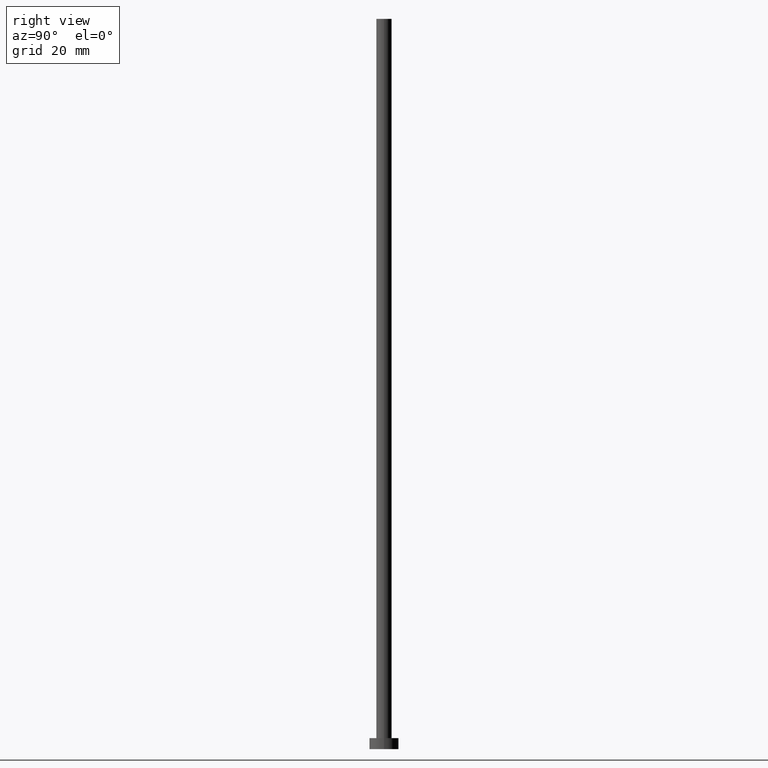
[diagram: clean part render]
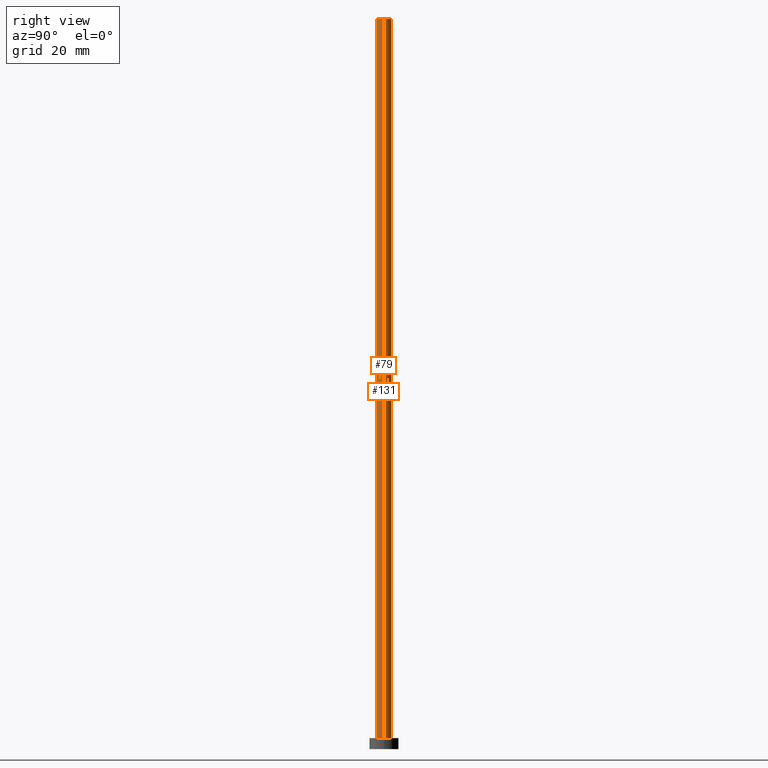
[diagram: same view with one multi-face feature highlighted, each face labeled with its STEP entity id]
A machine part, right view. The highlighted faces form ONE feature: a constant-radius fillet chain: 2 tangent blend faces with common blend radius 2.1 mm. The faces share edges in the B-rep.
Their STEP definitions:
[1] entity #131 (Cylinder):
#9 = ORIENTED_EDGE ( 'NONE', *, *, #123, .T. ) ;
#10 = EDGE_CURVE ( 'NONE', #200, #153, #242, .T. ) ;
#12 = LINE ( 'NONE', #43, #22 ) ;
#16 = VECTOR ( 'NONE', #18, 1000.000000000000000 ) ;
#18 = DIRECTION ( 'NONE',  ( -0.000000000000000000, -0.000000000000000000, -1.000000000000000000 ) ) ;
#22 = VECTOR ( 'NONE', #126, 1000.000000000000000 ) ;
#31 = ORIENTED_EDGE ( 'NONE', *, *, #10, .F. ) ;
#39 = LINE ( 'NONE', #118, #16 ) ;
#43 = CARTESIAN_POINT ( 'NONE',  ( -2.100000000000000089, 0.000000000000000000, 200.0000000000000000 ) ) ;
#46 = DIRECTION ( 'NONE',  ( -1.000000000000000000, 0.000000000000000000, 0.000000000000000000 ) ) ;
#73 = CIRCLE ( 'NONE', #125, 2.100000000000000089 ) ;
#81 = DIRECTION ( 'NONE',  ( 1.000000000000000000, 0.000000000000000000, 0.000000000000000000 ) ) ;
#87 = CARTESIAN_POINT ( 'NONE',  ( 0.000000000000000000, 0.000000000000000000, 200.0000000000000000 ) ) ;
#88 = ORIENTED_EDGE ( 'NONE', *, *, #194, .T. ) ;
#107 = AXIS2_PLACEMENT_3D ( 'NONE', #87, #244, #46 ) ;
#109 = DIRECTION ( 'NONE',  ( 0.000000000000000000, 0.000000000000000000, 1.000000000000000000 ) ) ;
#118 = CARTESIAN_POINT ( 'NONE',  ( 2.100000000000000089, 2.571758278209441957E-16, 200.0000000000000000 ) ) ;
#123 = EDGE_CURVE ( 'NONE', #229, #211, #73, .T. ) ;
#125 = AXIS2_PLACEMENT_3D ( 'NONE', #185, #109, #81 ) ;
#126 = DIRECTION ( 'NONE',  ( -0.000000000000000000, -0.000000000000000000, -1.000000000000000000 ) ) ;
#131 = ADVANCED_FACE ( 'NONE', ( #245 ), #163, .T. ) ;
#132 = CARTESIAN_POINT ( 'NONE',  ( -2.100000000000000089, 0.000000000000000000, 200.0000000000000000 ) ) ;
#135 = CARTESIAN_POINT ( 'NONE',  ( 0.000000000000000000, 0.000000000000000000, 200.0000000000000000 ) ) ;
#136 = CARTESIAN_POINT ( 'NONE',  ( 2.100000000000000089, 2.571758278209441957E-16, 3.000000000000000000 ) ) ;
#141 = EDGE_CURVE ( 'NONE', #153, #211, #12, .T. ) ;
#153 = VERTEX_POINT ( 'NONE', #132 ) ;
#163 = CYLINDRICAL_SURFACE ( 'NONE', #107, 2.100000000000000089 ) ;
#167 = ORIENTED_EDGE ( 'NONE', *, *, #141, .F. ) ;
#185 = CARTESIAN_POINT ( 'NONE',  ( 0.000000000000000000, 0.000000000000000000, 3.000000000000000000 ) ) ;
#189 = AXIS2_PLACEMENT_3D ( 'NONE', #135, #220, #243 ) ;
#194 = EDGE_CURVE ( 'NONE', #200, #229, #39, .T. ) ;
#197 = EDGE_LOOP ( 'NONE', ( #31, #88, #9, #167 ) ) ;
#200 = VERTEX_POINT ( 'NONE', #236 ) ;
#211 = VERTEX_POINT ( 'NONE', #218 ) ;
#218 = CARTESIAN_POINT ( 'NONE',  ( -2.100000000000000089, 0.000000000000000000, 3.000000000000000000 ) ) ;
#220 = DIRECTION ( 'NONE',  ( 0.000000000000000000, 0.000000000000000000, 1.000000000000000000 ) ) ;
#229 = VERTEX_POINT ( 'NONE', #136 ) ;
#236 = CARTESIAN_POINT ( 'NONE',  ( 2.100000000000000089, 2.571758278209441957E-16, 200.0000000000000000 ) ) ;
#242 = CIRCLE ( 'NONE', #189, 2.100000000000000089 ) ;
#243 = DIRECTION ( 'NONE',  ( 1.000000000000000000, 0.000000000000000000, 0.000000000000000000 ) ) ;
#244 = DIRECTION ( 'NONE',  ( -0.000000000000000000, -0.000000000000000000, -1.000000000000000000 ) ) ;
#245 = FACE_OUTER_BOUND ( 'NONE', #197, .T. ) ;
[2] entity #79 (Cylinder):
#7 = DIRECTION ( 'NONE',  ( -1.000000000000000000, 0.000000000000000000, 0.000000000000000000 ) ) ;
#12 = LINE ( 'NONE', #43, #22 ) ;
#15 = ORIENTED_EDGE ( 'NONE', *, *, #194, .F. ) ;
#16 = VECTOR ( 'NONE', #18, 1000.000000000000000 ) ;
#18 = DIRECTION ( 'NONE',  ( -0.000000000000000000, -0.000000000000000000, -1.000000000000000000 ) ) ;
#22 = VECTOR ( 'NONE', #126, 1000.000000000000000 ) ;
#37 = AXIS2_PLACEMENT_3D ( 'NONE', #168, #122, #7 ) ;
#39 = LINE ( 'NONE', #118, #16 ) ;
#42 = FACE_OUTER_BOUND ( 'NONE', #65, .T. ) ;
#43 = CARTESIAN_POINT ( 'NONE',  ( -2.100000000000000089, 0.000000000000000000, 200.0000000000000000 ) ) ;
#44 = DIRECTION ( 'NONE',  ( 1.000000000000000000, 0.000000000000000000, 0.000000000000000000 ) ) ;
#51 = EDGE_CURVE ( 'NONE', #211, #229, #72, .T. ) ;
#65 = EDGE_LOOP ( 'NONE', ( #15, #104, #84, #184 ) ) ;
#66 = EDGE_CURVE ( 'NONE', #153, #200, #182, .T. ) ;
#72 = CIRCLE ( 'NONE', #164, 2.100000000000000089 ) ;
#79 = ADVANCED_FACE ( 'NONE', ( #42 ), #187, .T. ) ;
#80 = DIRECTION ( 'NONE',  ( 1.000000000000000000, 0.000000000000000000, 0.000000000000000000 ) ) ;
#84 = ORIENTED_EDGE ( 'NONE', *, *, #141, .T. ) ;
#86 = CARTESIAN_POINT ( 'NONE',  ( 0.000000000000000000, 0.000000000000000000, 200.0000000000000000 ) ) ;
#96 = AXIS2_PLACEMENT_3D ( 'NONE', #86, #206, #44 ) ;
#104 = ORIENTED_EDGE ( 'NONE', *, *, #66, .F. ) ;
#118 = CARTESIAN_POINT ( 'NONE',  ( 2.100000000000000089, 2.571758278209441957E-16, 200.0000000000000000 ) ) ;
#122 = DIRECTION ( 'NONE',  ( -0.000000000000000000, -0.000000000000000000, -1.000000000000000000 ) ) ;
#126 = DIRECTION ( 'NONE',  ( -0.000000000000000000, -0.000000000000000000, -1.000000000000000000 ) ) ;
#132 = CARTESIAN_POINT ( 'NONE',  ( -2.100000000000000089, 0.000000000000000000, 200.0000000000000000 ) ) ;
#136 = CARTESIAN_POINT ( 'NONE',  ( 2.100000000000000089, 2.571758278209441957E-16, 3.000000000000000000 ) ) ;
#141 = EDGE_CURVE ( 'NONE', #153, #211, #12, .T. ) ;
#153 = VERTEX_POINT ( 'NONE', #132 ) ;
#164 = AXIS2_PLACEMENT_3D ( 'NONE', #223, #225, #80 ) ;
#168 = CARTESIAN_POINT ( 'NONE',  ( 0.000000000000000000, 0.000000000000000000, 200.0000000000000000 ) ) ;
#182 = CIRCLE ( 'NONE', #96, 2.100000000000000089 ) ;
#184 = ORIENTED_EDGE ( 'NONE', *, *, #51, .T. ) ;
#187 = CYLINDRICAL_SURFACE ( 'NONE', #37, 2.100000000000000089 ) ;
#194 = EDGE_CURVE ( 'NONE', #200, #229, #39, .T. ) ;
#200 = VERTEX_POINT ( 'NONE', #236 ) ;
#206 = DIRECTION ( 'NONE',  ( 0.000000000000000000, 0.000000000000000000, 1.000000000000000000 ) ) ;
#211 = VERTEX_POINT ( 'NONE', #218 ) ;
#218 = CARTESIAN_POINT ( 'NONE',  ( -2.100000000000000089, 0.000000000000000000, 3.000000000000000000 ) ) ;
#223 = CARTESIAN_POINT ( 'NONE',  ( 0.000000000000000000, 0.000000000000000000, 3.000000000000000000 ) ) ;
#225 = DIRECTION ( 'NONE',  ( 0.000000000000000000, 0.000000000000000000, 1.000000000000000000 ) ) ;
#229 = VERTEX_POINT ( 'NONE', #136 ) ;
#236 = CARTESIAN_POINT ( 'NONE',  ( 2.100000000000000089, 2.571758278209441957E-16, 200.0000000000000000 ) ) ;